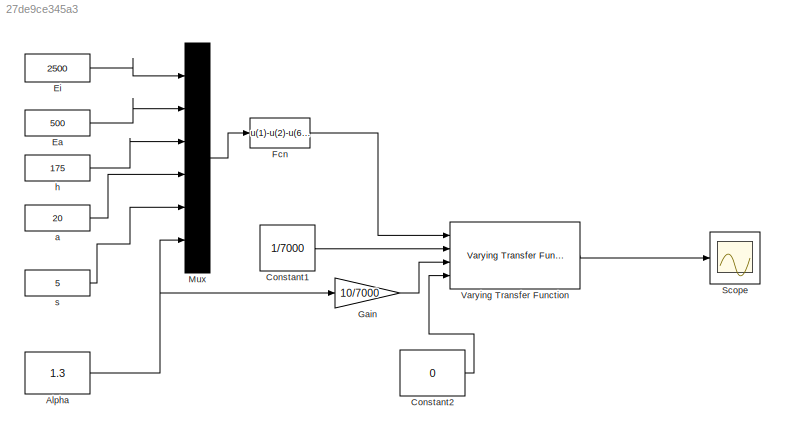
MODEL slx_27de9ce345a3
KIND model
CONFIG AbsTol = auto
CONFIG EnableMultiTasking = off
CONFIG FixedStep = auto
CONFIG MaxStep = auto
CONFIG MinStep = auto
CONFIG RelTol = 1e-3
CONFIG SampleTimeConstraint = Unconstrained
CONFIG Solver = VariableStepAuto
CONFIG SolverName = VariableStepAuto
CONFIG StartTime = 0.0
CONFIG StopTime = 3000.0
BLOCK [Constant] Alpha 
  Value = 1.3
BLOCK [Constant] Constant1
  Value = 1/7000
BLOCK [Constant] Constant2
  Value = 0
BLOCK [Constant] Ea 
  Value = 500
BLOCK [Constant] Ei 
  Value = 2500
BLOCK [Fcn] Fcn
  Expr = u(1)-u(2)-u(6)*(6.25*u(3)-5*u(4)+u(5))
BLOCK [Gain] Gain
  Gain = 10/7000
  OutDataTypeStr = Inherit: Inherit via internal rule
  ParamDataTypeStr = Inherit: Inherit via internal rule
  SaturateOnIntegerOverflow = off
BLOCK [Mux] Mux
  DisplayOption = bar
  Inputs = 6
  Ports = [6, 1]
BLOCK [Scope] Scope
  Floating = off
  NumInputPorts = 1
  Ports = [1]
  ScopeSpecificationString = Simulink.scopes.TimeScopeBlockCfg('CurrentConfiguration', extmgr.ConfigurationSet(extmgr.Configuration('Core','General UI',true),extmgr.Configuration('Core','Source UI',true),extmgr.Configuration('Sources','WiredSimulink',true),extmgr.Configuration('Visuals','Time Domain',true,'SerializedDisplays',{struct('MinYLimReal','52.03616','MaxYLimReal','71.99598','YLabelReal','','MinYLimMag','52.03616','Ma...<+1378ch>
BLOCK [Reference] Varying Transfer Function  REF=cstblocks/Linear Parameter Varying/Varying Transfer Function
  Ports = [4, 1]
  SourceBlock = cstblocks/Linear Parameter Varying/Varying Transfer Function
  SourceProductBaseCode = CT
  SourceProductName = Control System Toolbox
  SourceType = Varying Transfer Function
BLOCK [Constant] a
  Value = 20
BLOCK [Constant] h
  Value = 175
BLOCK [Constant] s 
  Value = 5
NET Alpha :1 -> Gain:1, Mux:6
LINE Constant1:1 -> Varying Transfer Function:2
LINE Constant2:1 -> Varying Transfer Function:4
LINE Ea :1 -> Mux:2
LINE Ei :1 -> Mux:1
LINE Fcn:1 -> Varying Transfer Function:1
LINE Gain:1 -> Varying Transfer Function:3
LINE Mux:1 -> Fcn:1
LINE Varying Transfer Function:1 -> Scope:1
LINE a:1 -> Mux:4
LINE h:1 -> Mux:3
LINE s :1 -> Mux:5
note: NET lines group one-source signal fan-out (src -> all destinations, sorted); 1:1 wires keep LINE
